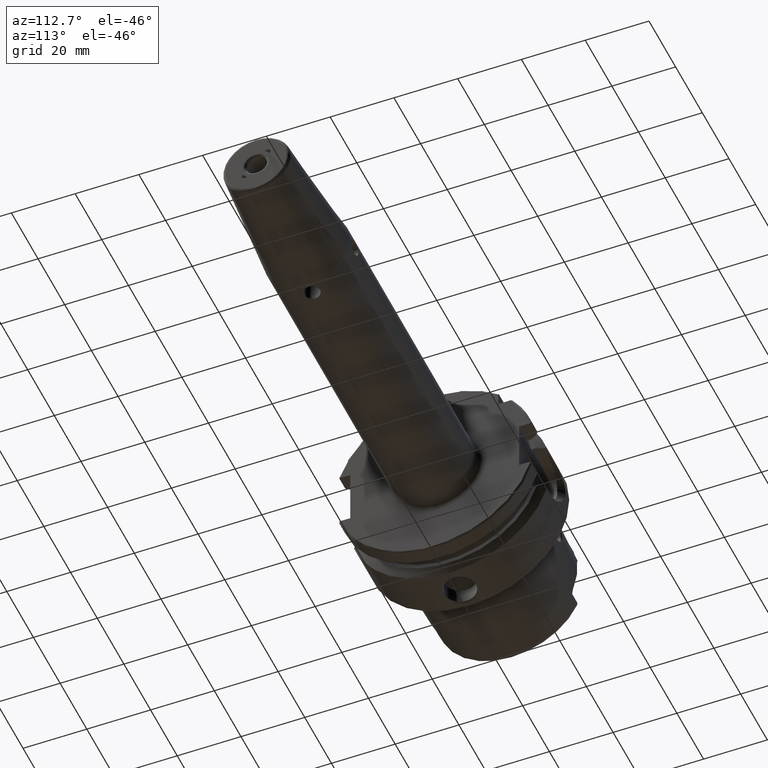
[diagram: clean part render]
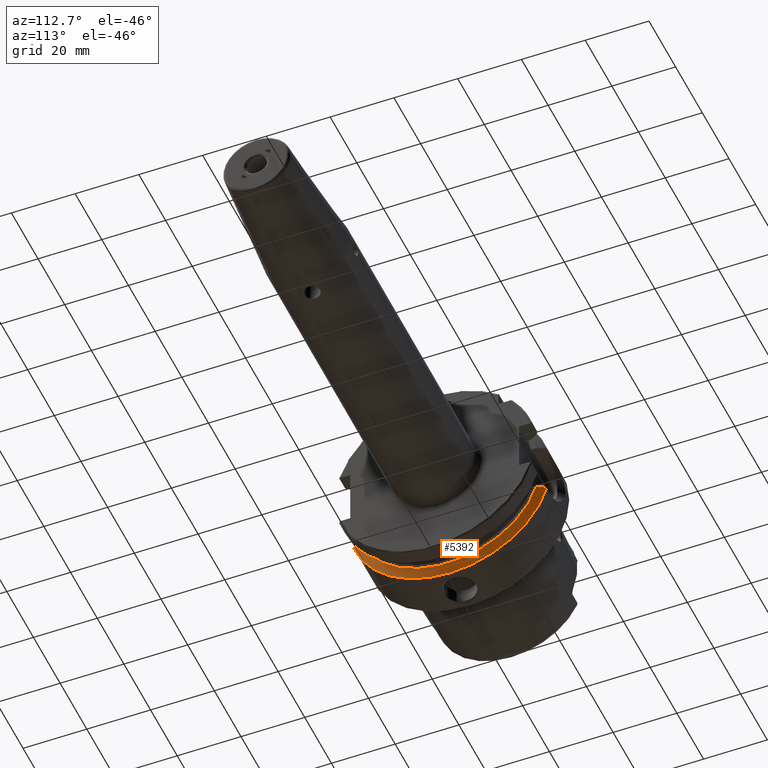
[diagram: same view with one face highlighted and labeled with its STEP entity id]
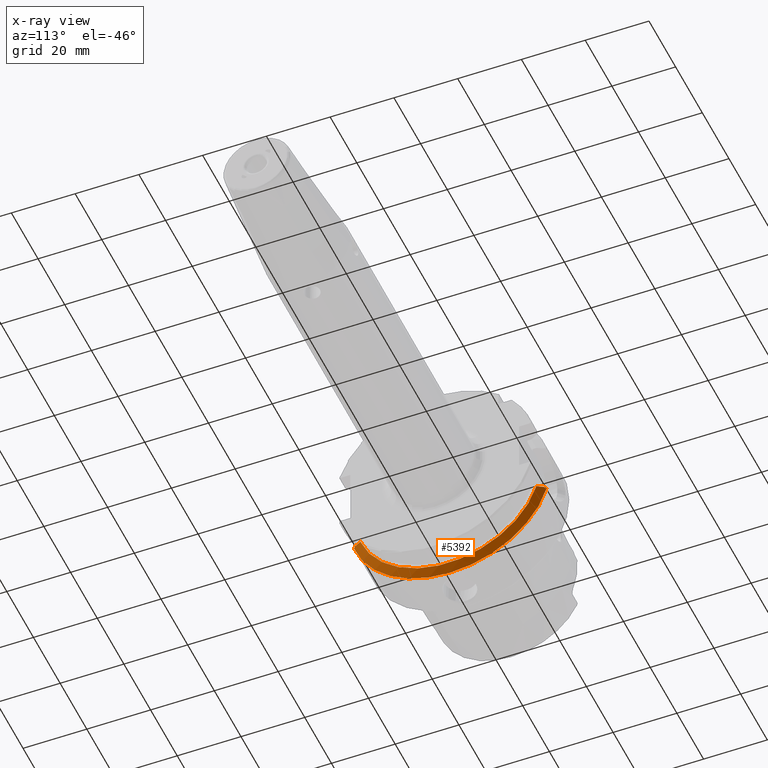
[diagram: x-ray of the same camera — body ghosted, the highlighted face saturated]
A machine part, auxiliary view. The second image highlights one B-rep face of the part: STEP entity #5392.
The next image is the same camera in x-ray: the body ghosted, the highlighted face saturated — about 0% of this face is hidden behind the body in this view.
In plain terms, the highlighted conical surface has half-angle 60 deg.
Its self-contained STEP definition (entity closure, byte-faithful):
#967=CARTESIAN_POINT('',(1.462250090457E1,0.E0,0.E0));
#968=DIRECTION('',(1.E0,0.E0,0.E0));
#969=DIRECTION('',(0.E0,-9.547030571660E-1,-2.975602000232E-1));
#970=AXIS2_PLACEMENT_3D('',#967,#968,#969);
#1038=CARTESIAN_POINT('',(1.462250090457E1,0.E0,0.E0));
#1039=DIRECTION('',(1.E0,0.E0,0.E0));
#1040=DIRECTION('',(0.E0,0.E0,-1.E0));
#1041=AXIS2_PLACEMENT_3D('',#1038,#1039,#1040);
#2063=CARTESIAN_POINT('',(1.462250090457E1,3.030257052423E1,-8.602570524226E0));
#2064=CARTESIAN_POINT('',(1.467078948999E1,3.023485181707E1,-8.534851817065E0));
#2065=CARTESIAN_POINT('',(1.476688260126E1,3.009992541680E1,-8.399925416799E0));
#2066=CARTESIAN_POINT('',(1.490956824516E1,2.989907088203E1,-8.199070882028E0));
#2067=CARTESIAN_POINT('',(1.500372551638E1,2.976618689262E1,-8.066186892620E0));
#2068=CARTESIAN_POINT('',(1.505056223932E1,2.97E1,-8.E0));
#2070=CARTESIAN_POINT('',(1.489172432548E1,-2.97E1,-9.E0));
#2071=CARTESIAN_POINT('',(1.484725659362E1,-2.976176295487E1,
-9.061762954873E0));
#2072=CARTESIAN_POINT('',(1.475791820907E1,-2.988571693019E1,
-9.185716930191E0));
#2073=CARTESIAN_POINT('',(1.466777422758E1,-3.001052712454E1,
-9.310527124543E0));
#2074=CARTESIAN_POINT('',(1.462250090457E1,-3.007314630073E1,
-9.373146300730E0));
#2076=CARTESIAN_POINT('',(1.489172432548E1,-2.97E1,-9.E0));
#2077=CARTESIAN_POINT('',(1.503259110226E1,-2.944505518706E1,-9.E0));
#2078=CARTESIAN_POINT('',(1.531177223422E1,-2.893923282224E1,-9.E0));
#2079=CARTESIAN_POINT('',(1.572283541904E1,-2.819275590813E1,-9.E0));
#2080=CARTESIAN_POINT('',(1.599179761986E1,-2.770314203488E1,-9.E0));
#2081=CARTESIAN_POINT('',(1.6125E1,-2.746035349595E1,-9.E0));
#2083=CARTESIAN_POINT('',(1.6125E1,0.E0,0.E0));
#2084=DIRECTION('',(1.E0,0.E0,0.E0));
#2085=DIRECTION('',(0.E0,-9.502643112990E-1,-3.114445996827E-1));
#2086=AXIS2_PLACEMENT_3D('',#2083,#2084,#2085);
#2088=CARTESIAN_POINT('',(1.6125E1,2.776816547996E1,-8.E0));
#2089=CARTESIAN_POINT('',(1.600834584368E1,2.797843452792E1,-8.E0));
#2090=CARTESIAN_POINT('',(1.577321590256E1,2.840189003060E1,-8.E0));
#2091=CARTESIAN_POINT('',(1.541507867144E1,2.904580805274E1,-8.E0));
#2092=CARTESIAN_POINT('',(1.517267317071E1,2.948095924087E1,-8.E0));
#2093=CARTESIAN_POINT('',(1.505056223932E1,2.97E1,-8.E0));
#2775=CARTESIAN_POINT('',(1.6125E1,2.776816547996E1,-8.E0));
#2776=VERTEX_POINT('',#2775);
#2807=CARTESIAN_POINT('',(1.6125E1,-2.746035349595E1,-9.E0));
#2808=VERTEX_POINT('',#2807);
#3004=CARTESIAN_POINT('',(1.462250090457E1,0.E0,-3.15E1));
#3005=VERTEX_POINT('',#3004);
#3029=CARTESIAN_POINT('',(1.462250090457E1,-3.007314630073E1,
-9.373146300730E0));
#3031=VERTEX_POINT('',#3029);
#3037=VERTEX_POINT('',#2070);
#3056=CARTESIAN_POINT('',(1.462250090457E1,3.030257052423E1,-8.602570524226E0));
#3057=VERTEX_POINT('',#3056);
#3059=VERTEX_POINT('',#2068);
#5374=CARTESIAN_POINT('',(1.537375045228E1,0.E0,0.E0));
#5375=DIRECTION('',(-1.E0,0.E0,0.E0));
#5376=DIRECTION('',(0.E0,0.E0,-1.E0));
#5377=AXIS2_PLACEMENT_3D('',#5374,#5375,#5376);
#5378=CONICAL_SURFACE('',#5377,3.019879765E1,5.999999931725E1);
#5379=ORIENTED_EDGE('',*,*,#4181,.F.);
#5380=ORIENTED_EDGE('',*,*,#4216,.F.);
#5381=ORIENTED_EDGE('',*,*,#4163,.F.);
#5383=ORIENTED_EDGE('',*,*,#5382,.F.);
#5385=ORIENTED_EDGE('',*,*,#5384,.T.);
#5387=ORIENTED_EDGE('',*,*,#5386,.T.);
#5389=ORIENTED_EDGE('',*,*,#5388,.T.);
#5390=EDGE_LOOP('',(#5379,#5380,#5381,#5383,#5385,#5387,#5389));
#5391=FACE_OUTER_BOUND('',#5390,.F.);
#5392=ADVANCED_FACE('',(#5391),#5378,.T.);
#971=CIRCLE('',#970,3.15E1);
#1042=CIRCLE('',#1041,3.15E1);
#2069=B_SPLINE_CURVE_WITH_KNOTS('',3,(#2063,#2064,#2065,#2066,#2067,#2068),
.UNSPECIFIED.,.F.,.F.,(4,1,1,4),(0.E0,3.333333333333E-1,6.666666666667E-1,1.E0),
.UNSPECIFIED.);
#2075=B_SPLINE_CURVE_WITH_KNOTS('',3,(#2070,#2071,#2072,#2073,#2074),
.UNSPECIFIED.,.F.,.F.,(4,1,4),(0.E0,5.E-1,1.E0),.UNSPECIFIED.);
#2082=B_SPLINE_CURVE_WITH_KNOTS('',3,(#2076,#2077,#2078,#2079,#2080,#2081),
.UNSPECIFIED.,.F.,.F.,(4,1,1,4),(0.E0,3.333333333333E-1,6.666666666667E-1,1.E0),
.UNSPECIFIED.);
#2087=CIRCLE('',#2086,2.88975953E1);
#2094=B_SPLINE_CURVE_WITH_KNOTS('',3,(#2088,#2089,#2090,#2091,#2092,#2093),
.UNSPECIFIED.,.F.,.F.,(4,1,1,4),(0.E0,3.333333333333E-1,6.666666666667E-1,1.E0),
.UNSPECIFIED.);
#4163=EDGE_CURVE('',#3031,#3005,#971,.T.);
#4181=EDGE_CURVE('',#3057,#3059,#2069,.T.);
#4216=EDGE_CURVE('',#3005,#3057,#1042,.T.);
#5382=EDGE_CURVE('',#3037,#3031,#2075,.T.);
#5384=EDGE_CURVE('',#3037,#2808,#2082,.T.);
#5386=EDGE_CURVE('',#2808,#2776,#2087,.T.);
#5388=EDGE_CURVE('',#2776,#3059,#2094,.T.);